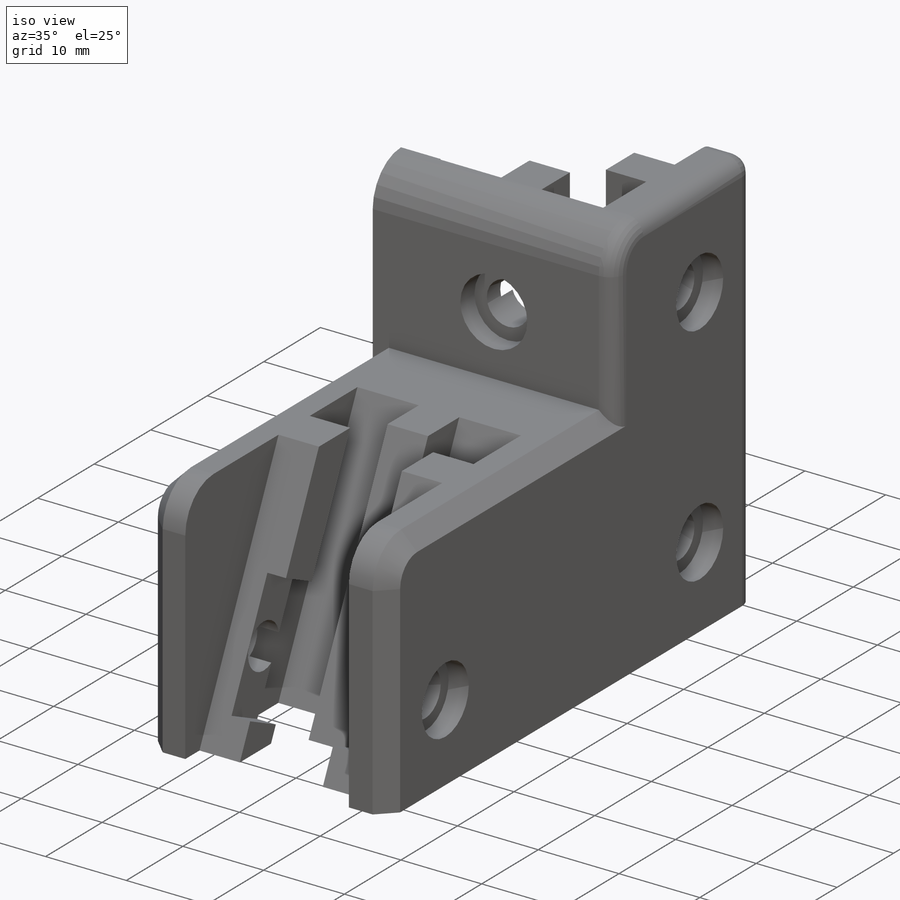
[diagram: iso view]
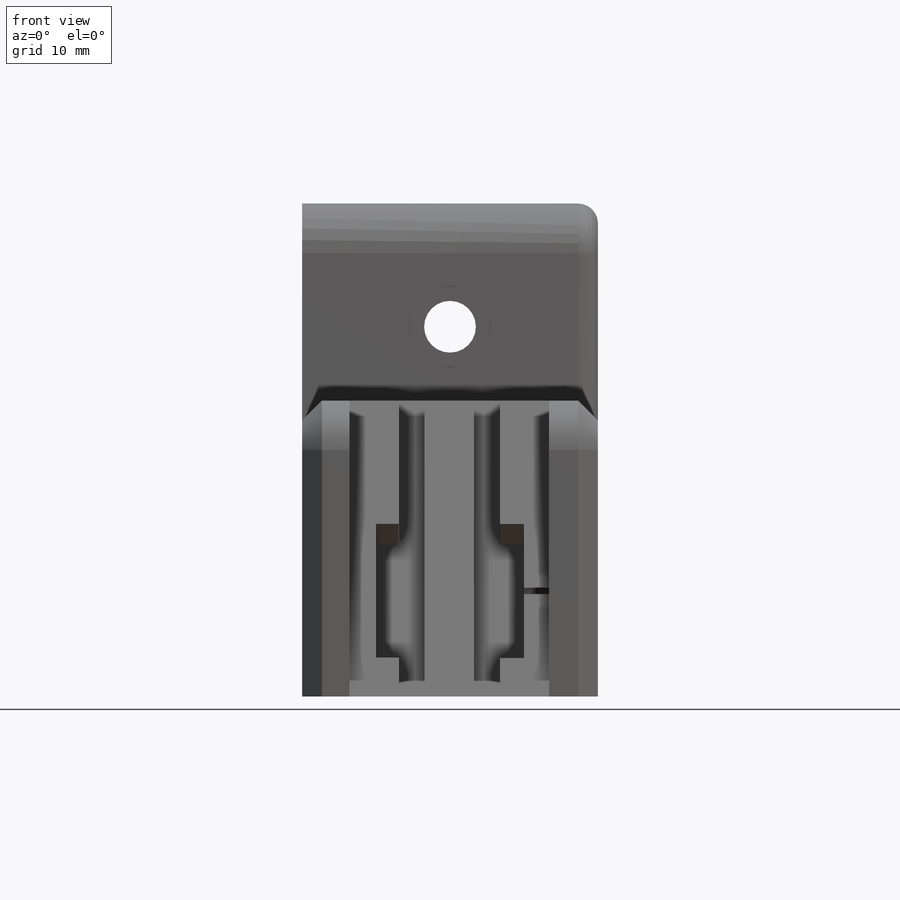
[diagram: front view]
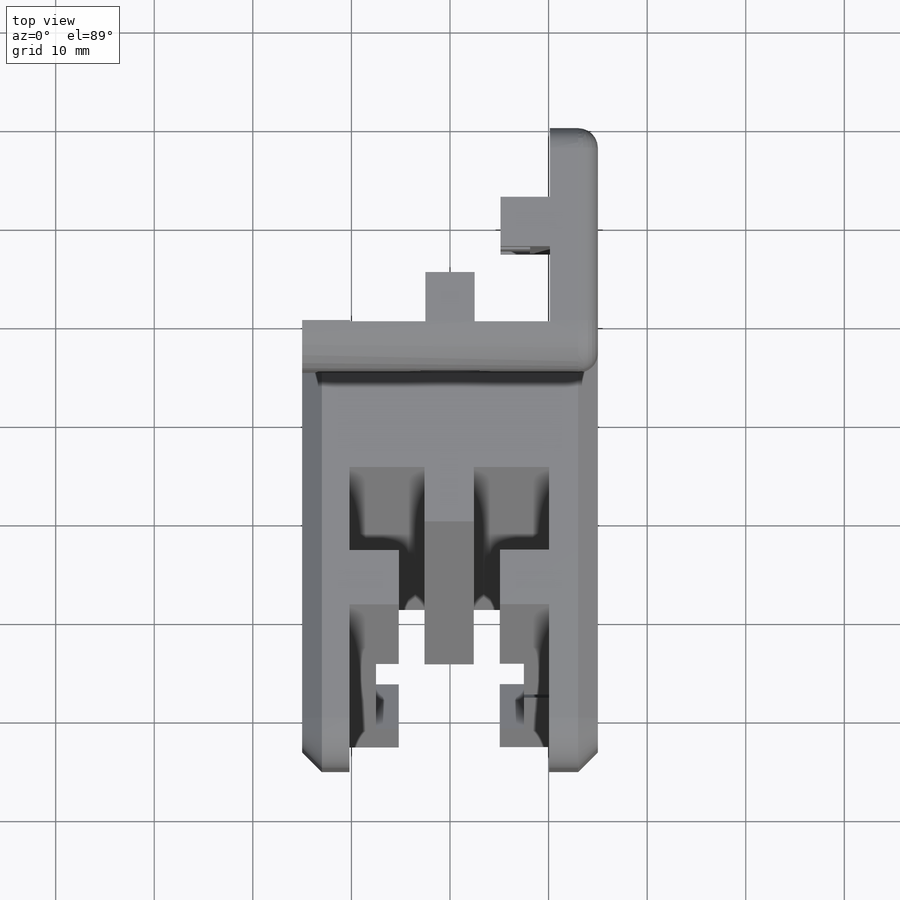
[diagram: top view]
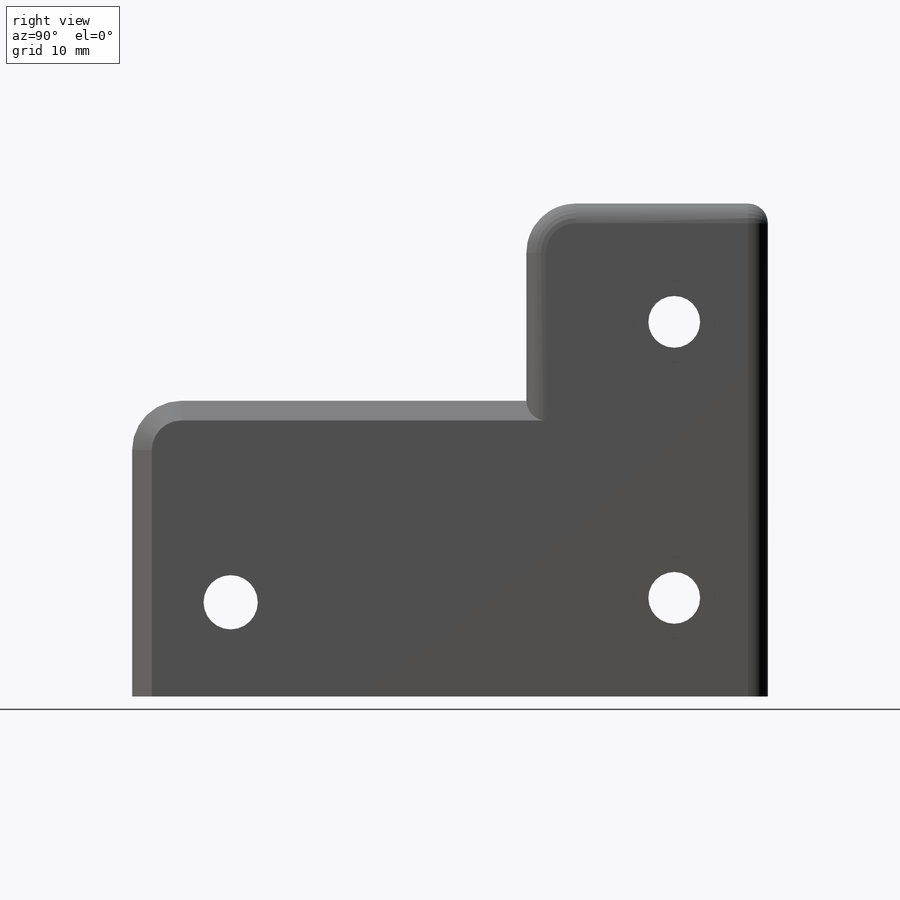
[diagram: right view]
SOLIDWORKS PART (.sldprt)
format: sldprt  version: not decoded by parser v0  size: 569,856 bytes
history: native  units: mm
features: sketch x17, cut_extrude x15, fillet x4, extrude x2, material x1, plane x1, chamfer x1 (+13 scaffold rows collapsed)
feature tree (54):
  scaffold x13  (default folders/planes/origin — collapsed)
  material  "Material <not specified>"
  sketch  "Z extrusion mount"  dims[D1=30.0mm D2=30.0mm]
  extrude  "Boss-Extrude1"  Depth=50mm
  sketch  "Sketch2"  dims[D1=20.25mm D2=20.25mm D3=5.0mm D4=5.0mm D5=2.5mm D6=2.5mm D7=5.0mm D8=5.0mm]
  cut_extrude  "Cut-Extrude1"  Depth=50mm
  sketch  "Sketch3"
  cut_extrude  "Cut-Extrude3"  Depth=50mm
  sketch  "Sketch4"  dims[D1=30.0mm]
  extrude  "Boss-Extrude3"  Depth=40mm
  sketch  "Sketch11"  dims[c1.D2=5.5mm c1.D1=30.0mm c2.D1=65.0deg c2.D3=1.0mm]
  plane  "45 Angle Plane"
  sketch  "Sketch12"  dims[D1=20.25mm D2=20.25mm D3=5.0mm D4=5.0mm D5=4.0]
  cut_extrude  "Cut-Extrude4"  Depth=10mm
  fillet  "Fillet1"  Radius=5mm
  fillet  "Fillet2"  Radius=5mm
  cut_extrude  "Cut-Extrude14"  Depth=30mm
  sketch  "Sketch22"  dims[D1=8.3mm]
  cut_extrude  "Cut-Extrude17"  Depth=2.5mm
  sketch  "Sketch23"  dims[D1=8.3mm]
  cut_extrude  "Cut-Extrude18"  Depth=2.5mm
  fillet  "Fillet4"  Radius=2mm
  sketch  "Sketch24"
  cut_extrude  "Cut-Extrude19"  [1 undecoded]
  sketch  "Sketch25"  dims[c1.D1=5.25mm c1.D2=5.25mm c1.D5=5.25mm c1.D6=5.25mm c1.D3=10.0mm c1.D4=10.0mm c2.D5=48.0mm c3.D5=~0.301803deg c4.D5=48.0mm c5.D5=~0.301803deg c6.D5=48.0mm c7.D5=~0.301803deg c8.D5=9.5mm c8.D6=9.5mm]
  cut_extrude  "Cut-Extrude20"  [1 undecoded]
  sketch  "Sketch26"  dims[D1=8.3mm D2=8.3mm]
  cut_extrude  "Cut-Extrude21"  Depth=2.5mm
  sketch  "Sketch27"  dims[D2=5.25mm D1=7.5mm]
  cut_extrude  "Cut-Extrude23"  [1 undecoded]
  sketch  "Sketch28"  dims[D1=8.3mm]
  cut_extrude  "Cut-Extrude24"  Depth=2.5mm
  sketch  "Sketch29"  dims[D1=10.0mm D2=15.0mm]
  cut_extrude  "Cut-Extrude25"  Depth=3mm
  sketch  "Sketch31"  dims[c1.D1=15.0mm c1.D2=~6.424015mm c1.D3=15.0mm c2.D2=10.0mm c2.D3=15.0mm c2.D4=10.0mm]
  cut_extrude  "Cut-Extrude27"  Depth=3mm
  sketch  "Sketch33"
  cut_extrude  "Cut-Extrude29"  [1 undecoded]
  sketch  "Sketch35"  dims[c1.D1=15.0mm c1.D2=8.0mm c1.D3=7.5mm c1.D4=4.0mm c2.D1=15.0mm c2.D2=7.5mm c2.D3=8.0mm c2.D4=~23.040074mm c3.D4=4.0deg c4.D4=~20.933576mm c5.D4=176.0deg c6.D4=4.0mm]
  cut_extrude  "Cut-Extrude30"  Depth=15mm
  chamfer  "Chamfer1"  Distance=2mm Angle=45deg
  fillet  "Fillet5"  Radius=2mm
decode coverage: 32 of 39 modeling features carry decoded parameters
note: ~ marks probable driven/reference dimensions
note: 4 parameter values undecoded
summary: no parameter record found for 4 features
note: suppression state not decoded; provenance and decode notes live in map.json
